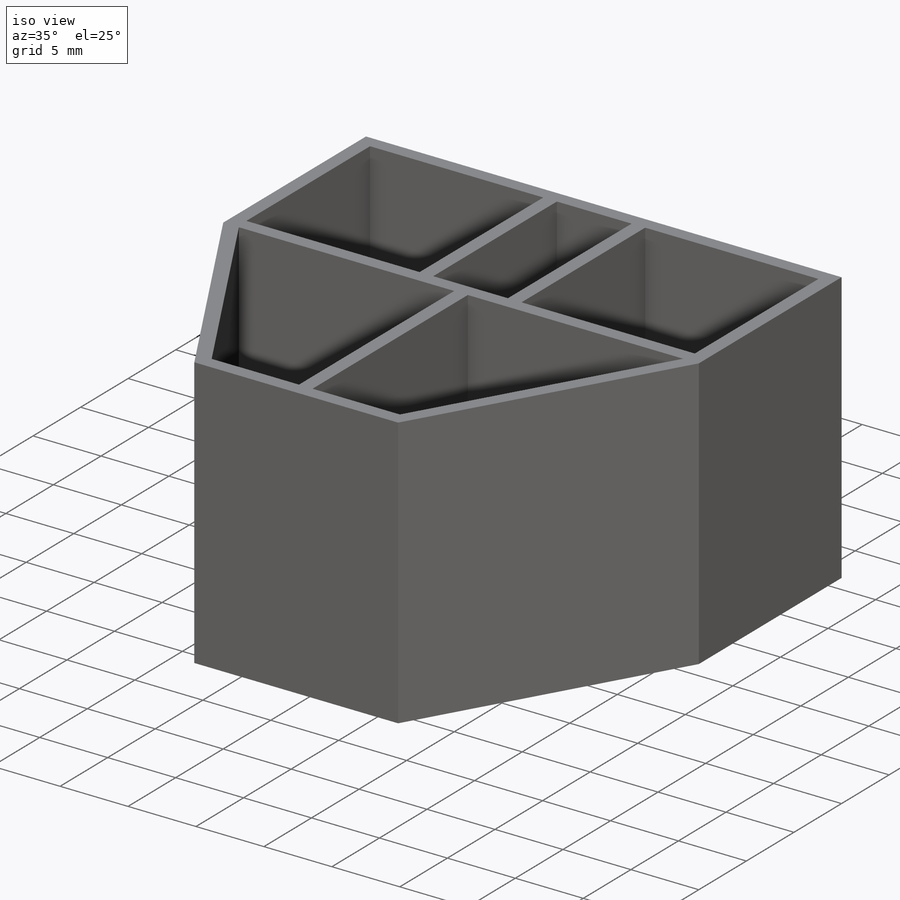
[diagram: iso view]
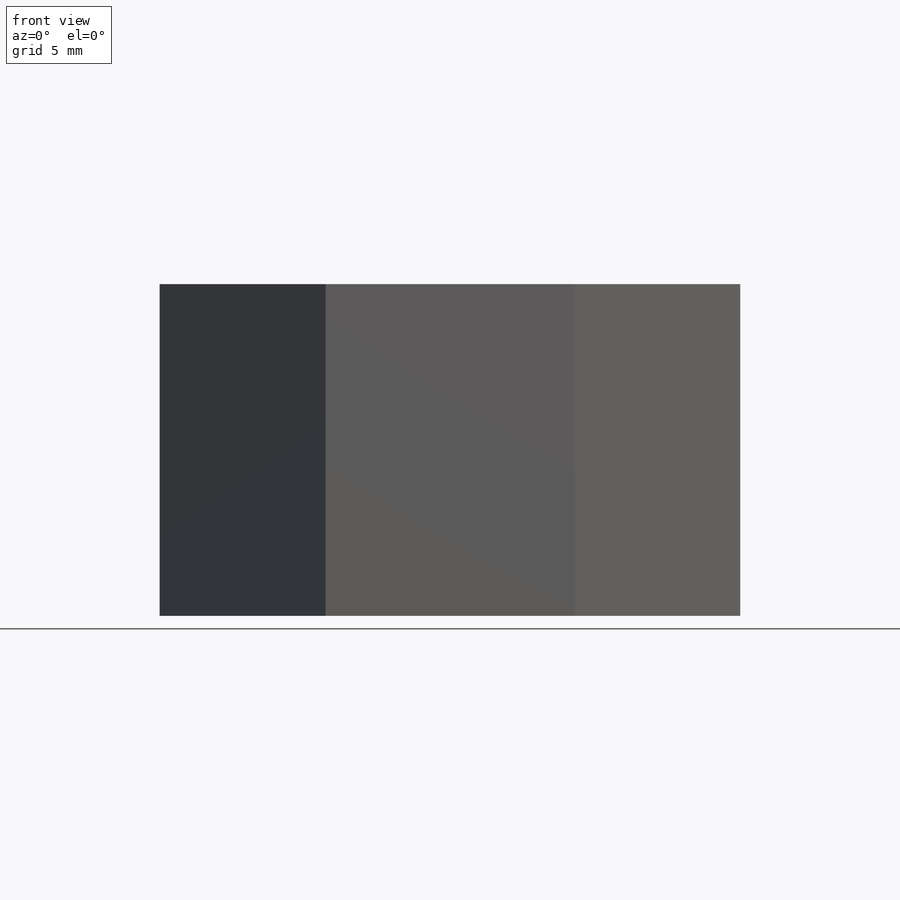
[diagram: front view]
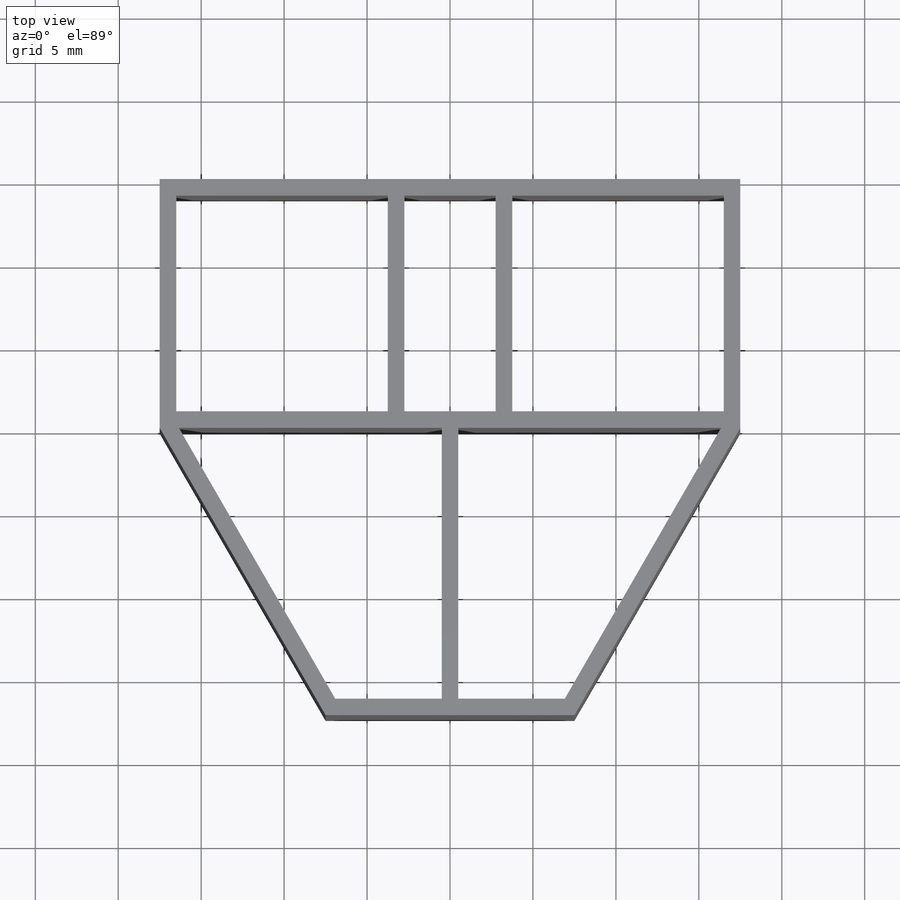
[diagram: top view]
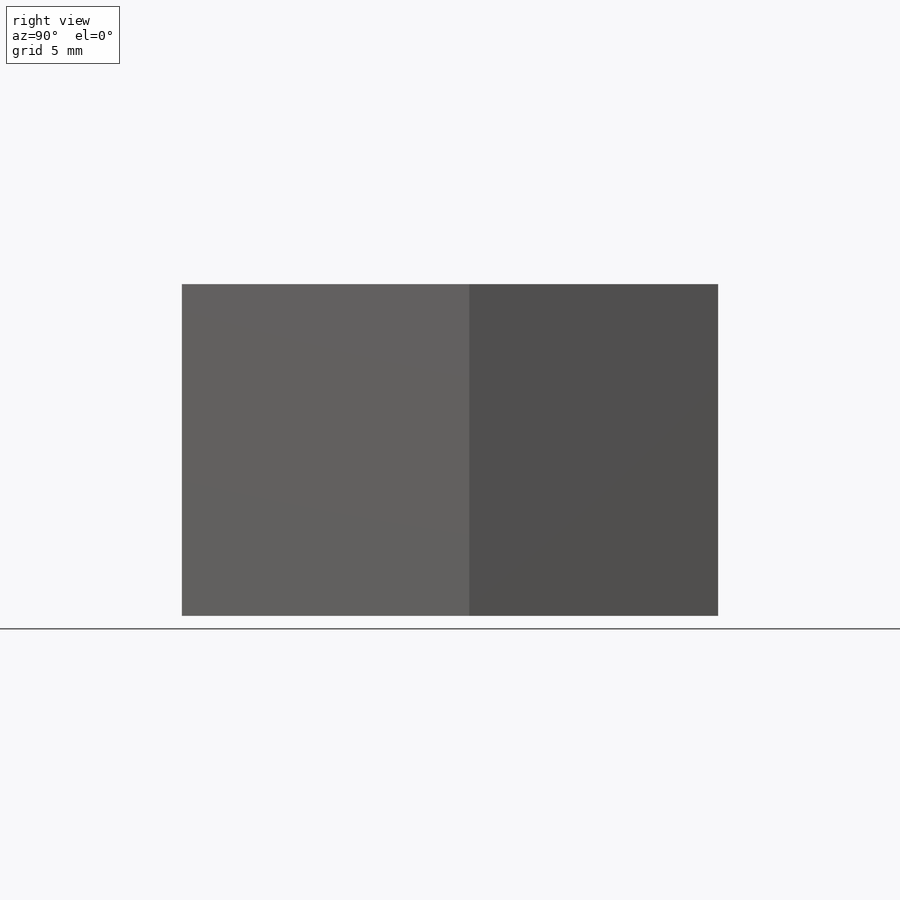
[diagram: right view]
SOLIDWORKS PART (.sldprt)
format: sldprt  version: not decoded by parser v0  size: 352,768 bytes
history: native  units: mm
features: sketch x9, plane x7, extrude x4, material x1 (+14 scaffold rows collapsed; 4 parser-record rows omitted)
feature tree (39):
  scaffold x14  (default folders/planes/origin — collapsed)
  material  "材质 <未指定>"
  plane  "前视基准面"
  plane  "上视基准面"
  plane  "右视基准面"
  plane  "InnerBottom"
  sketch  "Circle"  dims[R=200.0mm]
  plane  "InnerTop"  Offset=60mm H=60mm
  plane  "SlotCenterV"
  plane  "SlotCenterH"
  parser-record x4  (decoder bookkeeping rows leaked as tree rows — omitted from the tree; the rows remain in map.json)
  sketch  "STwoSlot"  dims[D4=3.0mm D1=8.0mm D2=2.0mm D3=3.0mm D5=10.0mm]
  sketch  "STwoBase"  dims[c1.D1=35.0mm c1.D2=15.0mm c1.D3=1.0mm c1.D4=1.0mm c1.D5=1.0mm c2.D3=1.0mm c2.D4=1.0mm c2.D5=0.5mm c2.D6=0.5mm]
  extrude  "FTwoBase"  Depth=20mm
  sketch  "SFiveSlotTP1"  dims[c1.D4=3.0mm c1.D1=8.0mm c1.T3=2.4mm c1.D3=3.0mm c1.D5=10.0mm c1.B1=9.0mm c1.D7=3.0mm c1.T1=2.4mm c2.D7=7.0mm c2.T2=2.4mm c2.B2=9.0mm c2.D11=10.0mm c2.D12=~5.656854mm c3.D12=60.0deg c3.A=11.1mm c3.F=9.5mm c3.F2=12.7mm]
  sketch  "SFiveBaseTP1"  dims[c1.D1=35.0mm c1.D2=~14.26503mm c2.D2=60.0deg c2.D3=15.0mm c2.D4=15.0mm c2.D5=1.0mm c2.D6=1.0mm c2.D7=1.0mm c2.D8=~15.709197mm c3.D8=~179.869799deg c4.D8=1.0mm c4.D9=1.0mm c4.D10=1.0mm c4.D11=13.0mm c4.D12=1.0mm c4.D13=1.0mm c4.D14=1.0mm c4.D15=1.0mm c4.D16=7.5mm]
  extrude  "FFiveBaseTP1"  Depth=20mm
  sketch  "SThreeSlot"  dims[c1.T1=2.4mm c1.T2=2.4mm c1.D1=~9.309741mm c2.D1=60.0deg c2.F=9.5mm c2.B1=9.0mm c2.B2=9.0mm c2.D2=11.1mm c2.D3=2.4mm c3.D3=270.0deg c4.D3=7.0mm]
  sketch  "SThreeBase"  dims[c1.D1=10.0mm c1.D2=15.0mm c1.D3=15.0mm c1.D4=20.0mm c1.D5=20.0mm c2.D5=60.0deg c2.D7=1.0mm c2.D6=1.0mm]
  extrude  "FThreeBase"  Depth=20mm
  sketch  "SUsbSlot"  dims[UsbL=12.0mm UsbKd=5.0mm]
  sketch  "SUsbBase"  dims[D1=10.0mm D2=18.0mm D3=1.0mm]
  extrude  "FUsbBase"  Depth=20mm
decode coverage: 13 of 13 modeling features carry decoded parameters
note: ~ marks probable driven/reference dimensions
note: suppression state not decoded; provenance and decode notes live in map.json
